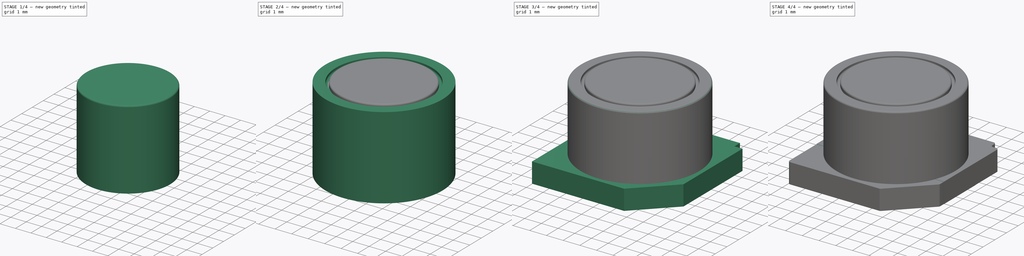
[diagram: build sequence overview — one tinted view per stage of 4, left to right]
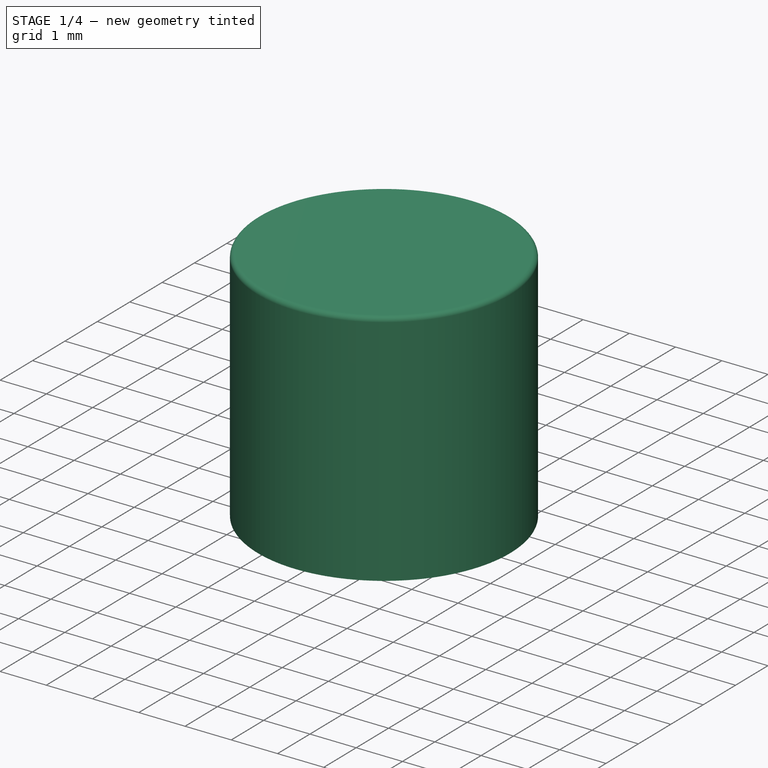
[diagram: stage 1 of 4 — iso view after this stage's code; geometry added in this stage tinted green]
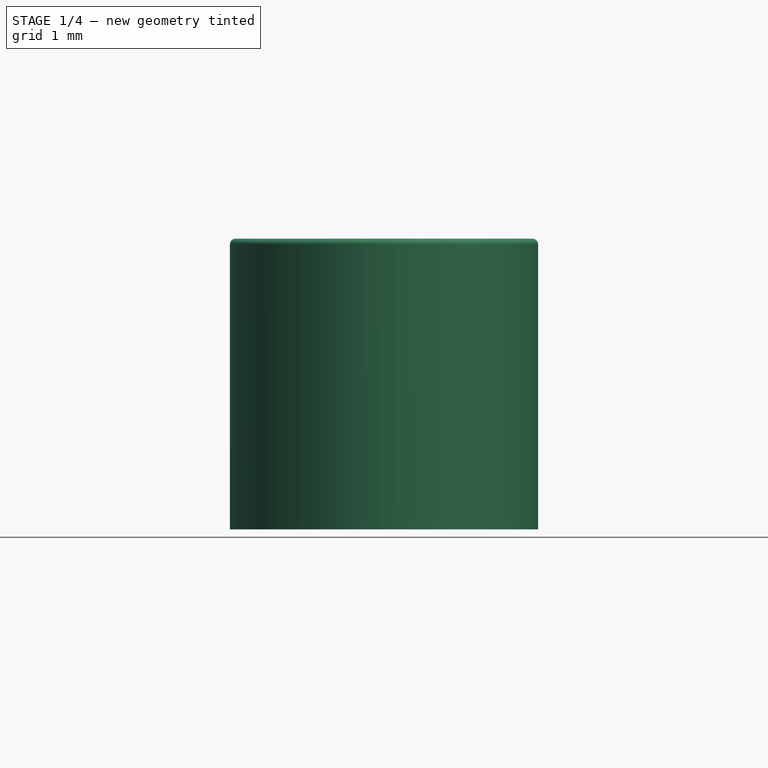
[diagram: stage 1 of 4 — front view after this stage's code; geometry added in this stage tinted green]
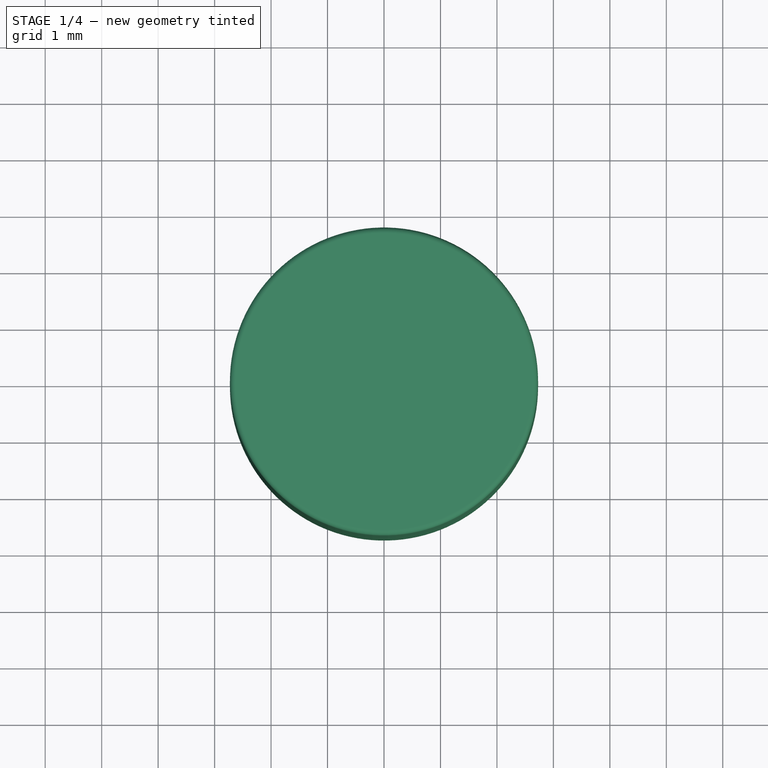
[diagram: stage 1 of 4 — top view after this stage's code; geometry added in this stage tinted green]
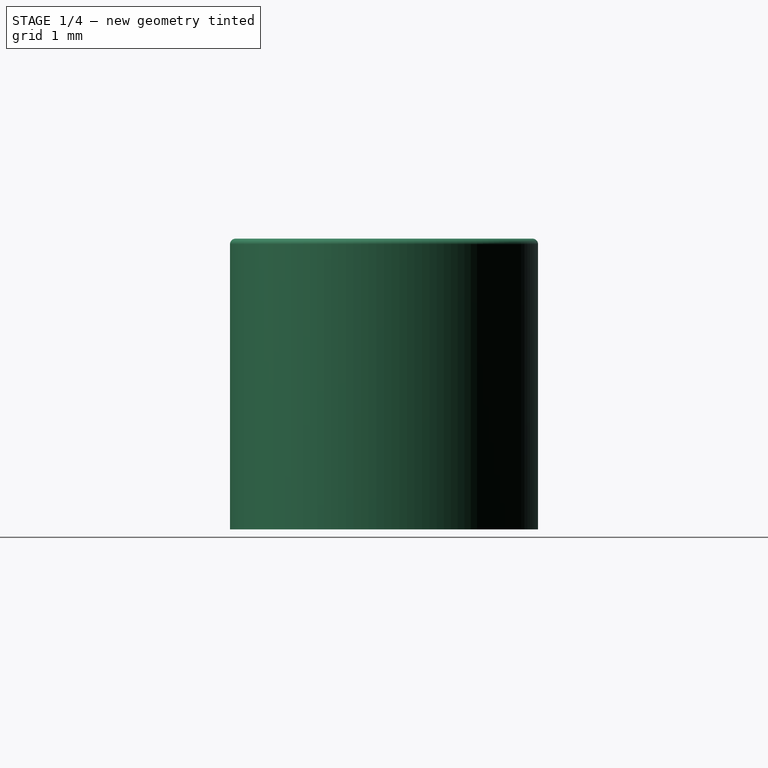
[diagram: stage 1 of 4 — right view after this stage's code; geometry added in this stage tinted green]
FCSTD DOCUMENT  (FreeCAD 0.16R6698 (Git))
Label: FERROCORE_SMD_0705
License: All rights reserved
LicenseURL: http://en.wikipedia.org/wiki/All_rights_reserved
objects: Sketcher::SketchObject×6, PartDesign::Pad×4, PartDesign::Fillet×4, Part::Feature×3, PartDesign::Pocket×2, App::DocumentObjectGroup×1
note: 25 computed .brp shape members not serialized (recipe doc carries the construction recipe); baked Part::Feature solids carry a one-line shape summary decoded from their .brp

FEATURE [Sketcher::SketchObject] Sketch005
  sketch-geometry (1):
    g0: Circle CenterX=0 CenterY=0 CenterZ=0 NormalX=0 NormalY=0 NormalZ=1 Radius=2.72869
  constraints (1):
    c: Coincident(g0,g-1)
FEATURE [PartDesign::Pad] Pad003
  Length = 5.15
  Length2 = 100
  Sketch = -> Sketch005
  Type = 0
FEATURE [PartDesign::Fillet] Fillet003
  Base = -> Pad003 [Edge3]
  Radius = 0.1
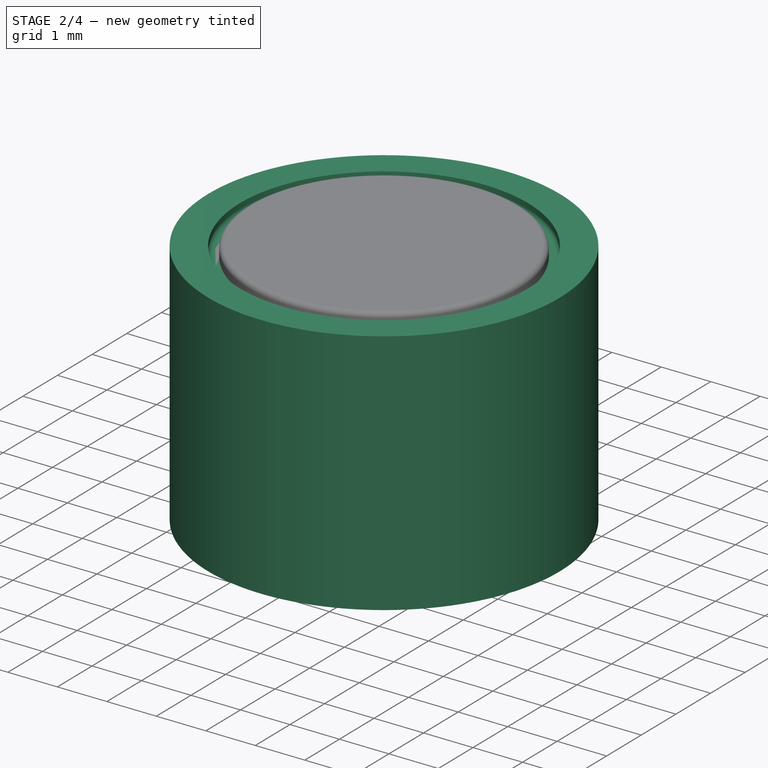
[diagram: stage 2 of 4 — iso view after this stage's code; geometry added in this stage tinted green]
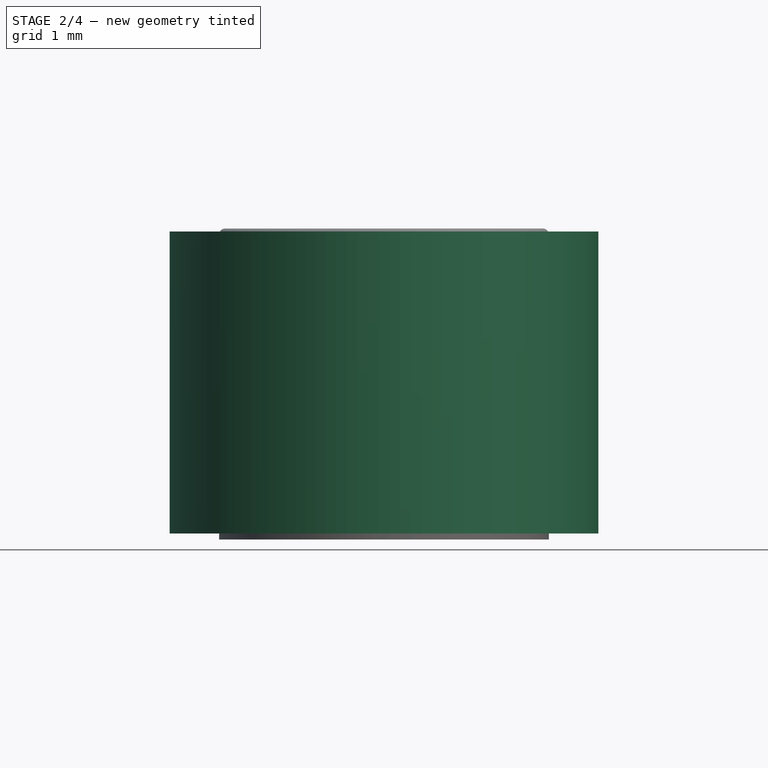
[diagram: stage 2 of 4 — front view after this stage's code; geometry added in this stage tinted green]
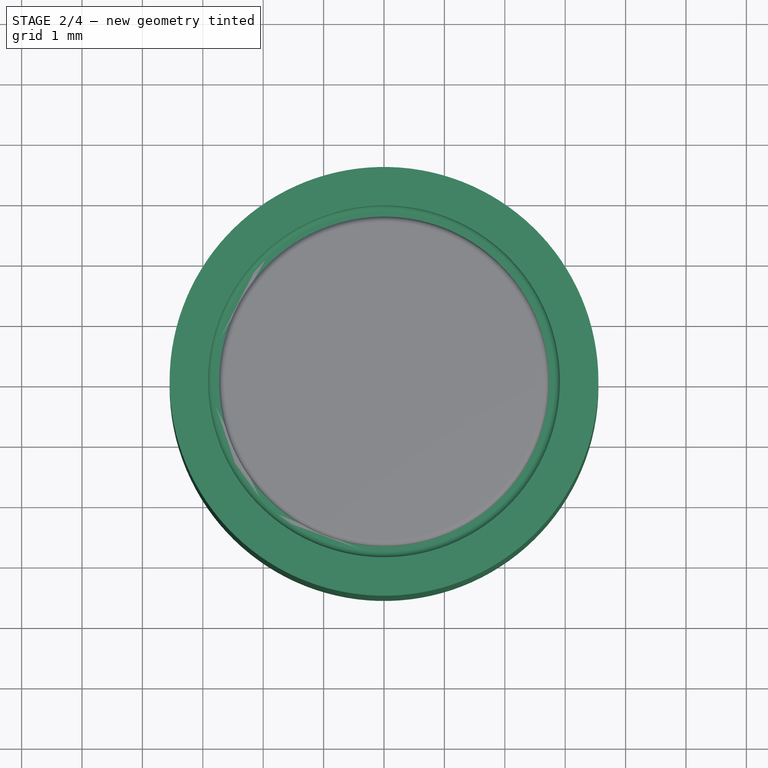
[diagram: stage 2 of 4 — top view after this stage's code; geometry added in this stage tinted green]
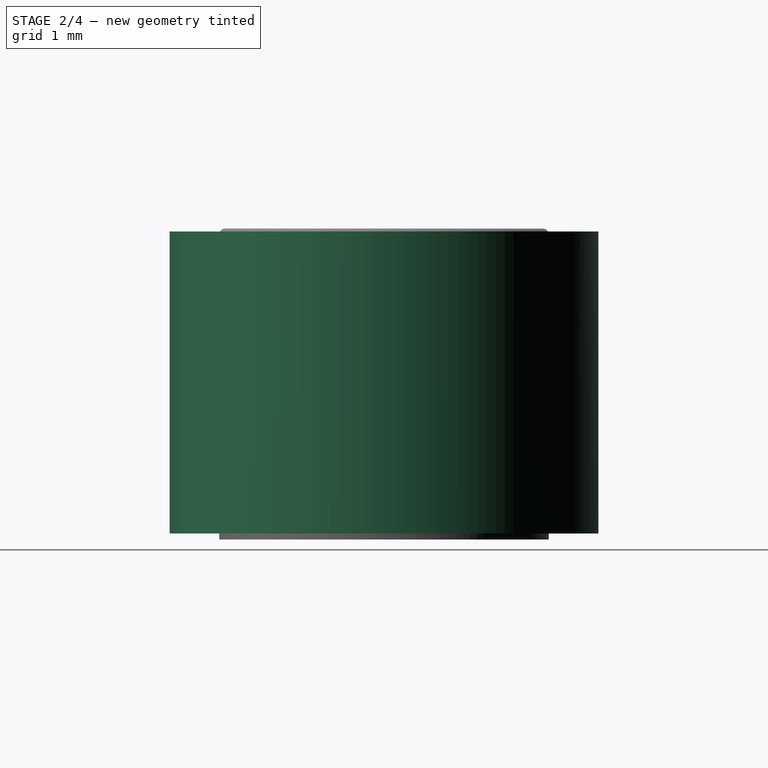
[diagram: stage 2 of 4 — right view after this stage's code; geometry added in this stage tinted green]
FEATURE [Sketcher::SketchObject] Sketch
  Placement = pos=(0,0,0.1) rot=(0,0,1;0rad)
  sketch-geometry (1):
    g0: Circle CenterX=0 CenterY=0 CenterZ=0 NormalX=0 NormalY=0 NormalZ=1 Radius=3.55
  constraints (2):
    c: Coincident(g0,g-1)
    c: Radius(g0) = 3.55
FEATURE [PartDesign::Pad] Pad
  Length = 5
  Length2 = 100
  Placement = pos=(0,0,0.1) rot=(0,0,1;0rad)
  Sketch = -> Sketch
  Type = 0
FEATURE [Sketcher::SketchObject] Sketch004
  Placement = pos=(0,0,5.1) rot=(0,0,1;0rad)
  Support = -> Pad [Face3]
  sketch-geometry (1):
    g0: Circle CenterX=0 CenterY=0 CenterZ=0 NormalX=0 NormalY=0 NormalZ=1 Radius=2.91215
  constraints (1):
    c: Coincident(g0,g-1)
FEATURE [PartDesign::Pocket] Pocket001
  Length = 0.2
  Placement = pos=(0,0,0.1) rot=(0,0,1;0rad)
  Sketch = -> Sketch004
  Type = 0
FEATURE [PartDesign::Fillet] Fillet001
  Base = -> Pocket001 [Edge6]
  Placement = pos=(0,0,0.1) rot=(0,0,1;0rad)
  Radius = 0.1
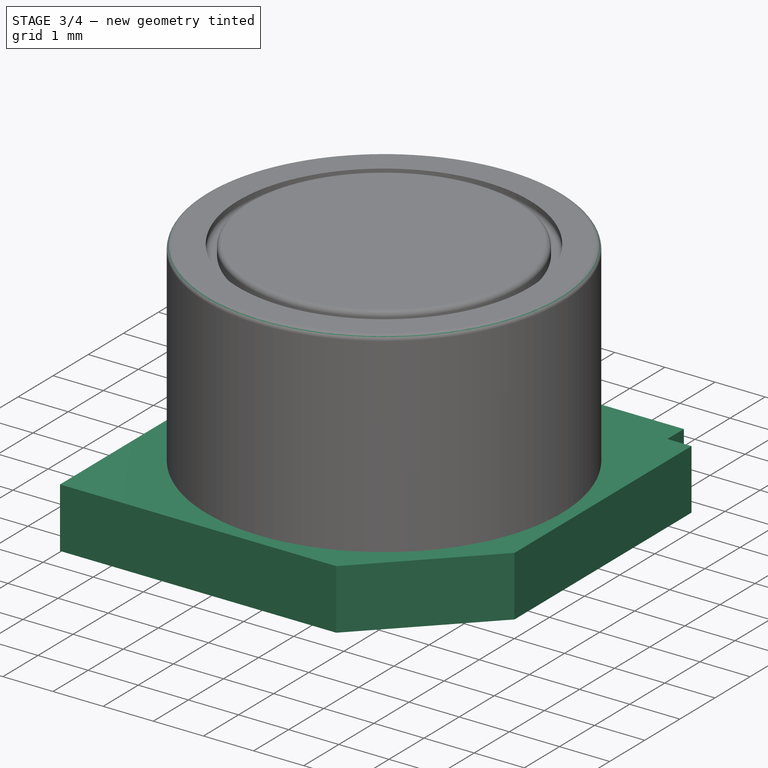
[diagram: stage 3 of 4 — iso view after this stage's code; geometry added in this stage tinted green]
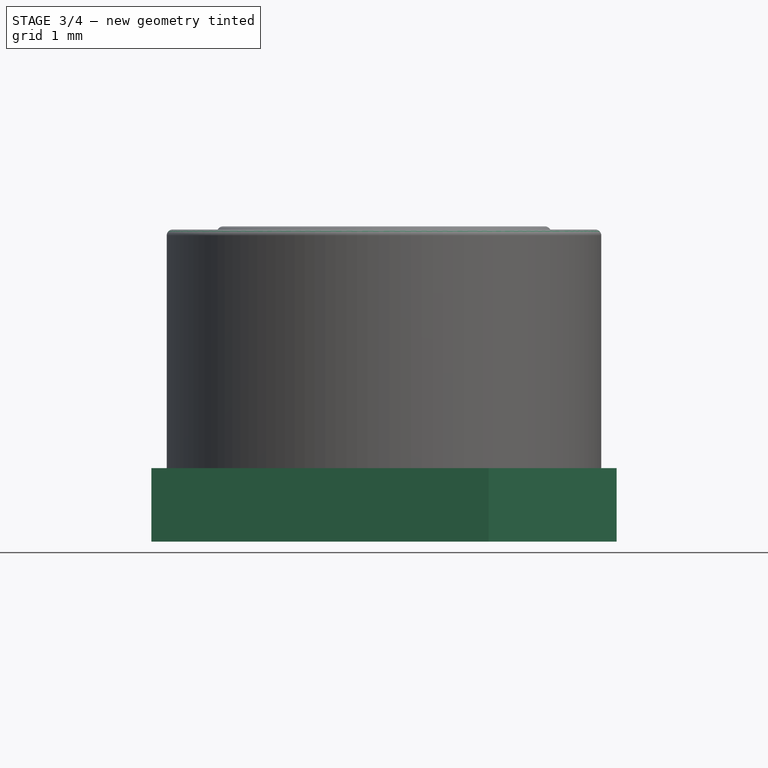
[diagram: stage 3 of 4 — front view after this stage's code; geometry added in this stage tinted green]
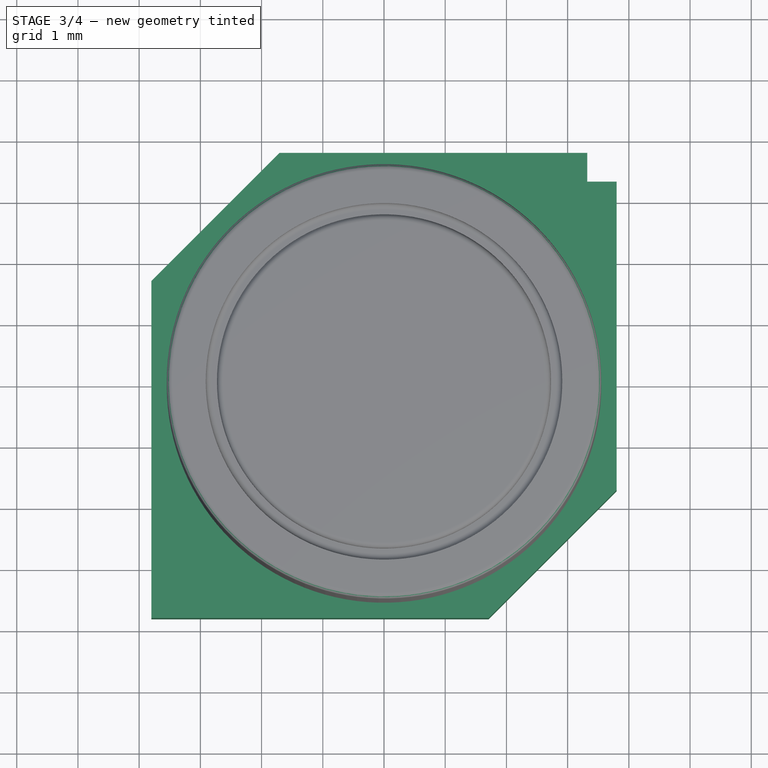
[diagram: stage 3 of 4 — top view after this stage's code; geometry added in this stage tinted green]
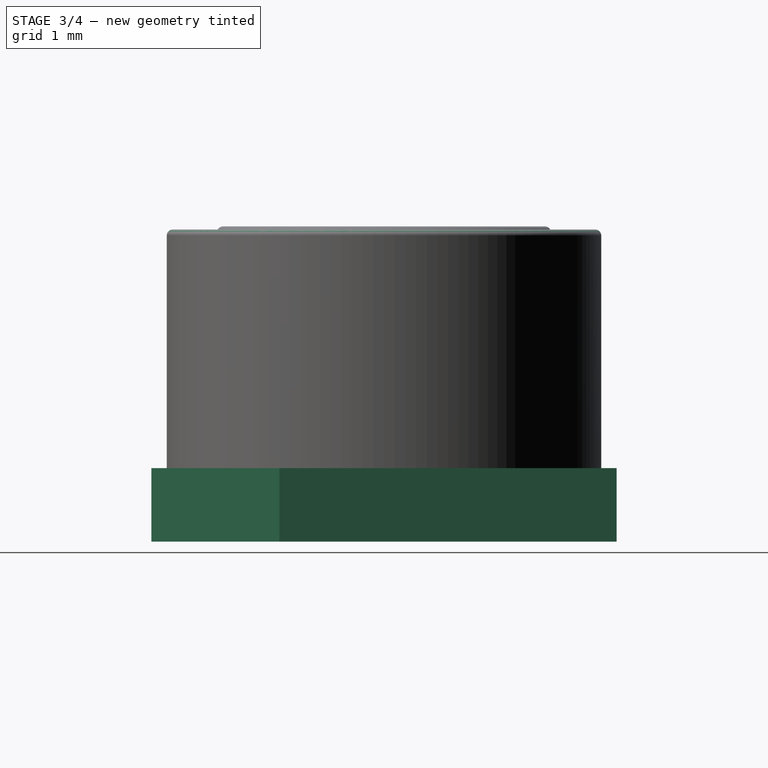
[diagram: stage 3 of 4 — right view after this stage's code; geometry added in this stage tinted green]
FEATURE [Sketcher::SketchObject] Sketch001
  sketch-geometry (4):
    g0: LineSegment StartX=-3.8 StartY=3.8 StartZ=0 EndX=3.8 EndY=3.8 EndZ=0
    g1: LineSegment StartX=3.8 StartY=3.8 StartZ=0 EndX=3.8 EndY=-3.8 EndZ=0
    g2: LineSegment StartX=3.8 StartY=-3.8 StartZ=0 EndX=-3.8 EndY=-3.8 EndZ=0
    g3: LineSegment StartX=-3.8 StartY=-3.8 StartZ=0 EndX=-3.8 EndY=3.8 EndZ=0
  constraints (11):
    c: Coincident(g0,g1)
    c: Coincident(g1,g2)
    c: Coincident(g2,g3)
    c: Coincident(g3,g0)
    c: Horizontal(g0)
    c: Horizontal(g2)
    c: Vertical(g1)
    c: Vertical(g3)
    c: Symmetric(g0,g1,g-1)
    c: DistanceX(g0,g0) = 7.6
    c: Equal(g0,g3)
FEATURE [PartDesign::Pad] Pad001
  Length = 1.2
  Length2 = 100
  Sketch = -> Sketch001
  Type = 0
FEATURE [Part::Feature] Shape  label="FrontSilk"
  shape: bbox 7.752 x 7.852 x 2e-07 mm, 14 faces, 0 solids (baked)
FEATURE [Part::Feature] Shape001  label="TopPads"
  shape: bbox 8.2 x 3 x 0.01 mm, 12 faces, 2 solids (baked)
FEATURE [Part::Feature] Shape002001  label="Pcb_solid"
  shape: bbox 13.12 x 12.56 x 1.58 mm, 6 faces (baked)
FEATURE [App::DocumentObjectGroup] FERROCORE_SMD_0703_fp
  Group = -> [Shape,Shape001,Shape002001]
FEATURE [Sketcher::SketchObject] Sketch002
  Placement = pos=(0,0,1.2) rot=(0,0,1;0rad)
  Support = -> Pad001 [Face6]
  sketch-geometry (9):
    g0: LineSegment StartX=-4.51175 StartY=4.27503 StartZ=0 EndX=-1.23385 EndY=4.27503 EndZ=0
    g1: LineSegment StartX=-1.23385 StartY=4.27503 StartZ=0 EndX=-4.51175 EndY=0.99713 EndZ=0
    g2: LineSegment StartX=-4.51175 StartY=0.99713 StartZ=0 EndX=-4.51175 EndY=4.27503 EndZ=0
    g3: LineSegment StartX=3.32065 StartY=4.59318 StartZ=0 EndX=3.32065 EndY=3.33003 EndZ=0
    g4: LineSegment StartX=3.32065 StartY=3.33003 StartZ=0 EndX=4.46774 EndY=3.33003 EndZ=0
    g5: LineSegment StartX=4.46774 StartY=3.33003 StartZ=0 EndX=3.32065 EndY=4.59318 EndZ=0
    g6: LineSegment StartX=4.51175 StartY=-0.99713 StartZ=0 EndX=1.23385 EndY=-4.27503 EndZ=0
    g7: LineSegment StartX=1.23385 StartY=-4.27503 StartZ=0 EndX=4.51175 EndY=-4.27503 EndZ=0
    g8: LineSegment StartX=4.51175 StartY=-4.27503 StartZ=0 EndX=4.51175 EndY=-0.99713 EndZ=0
  constraints (17):
    c: Coincident(g0,g1)
    c: Coincident(g1,g2)
    c: Coincident(g2,g0)
    c: Coincident(g3,g4)
    c: Coincident(g4,g5)
    c: Coincident(g5,g3)
    c: Coincident(g6,g7)
    c: Coincident(g7,g8)
    c: Coincident(g8,g6)
    c: Symmetric(g7,g0,g-1)
    c: Symmetric(g0,g6,g-1)
    c: Symmetric(g1,g6,g-1)
    c: Horizontal(g0)
    c: Vertical(g2)
    c: Equal(g0,g2)
    c: Vertical(g3)
    c: Horizontal(g4)
FEATURE [PartDesign::Pocket] Pocket
  Length = 5
  Sketch = -> Sketch002
  Type = 0
FEATURE [PartDesign::Fillet] Fillet002
  Base = -> Fillet001 [Edge8,Edge6]
  Placement = pos=(0,0,0.1) rot=(0,0,1;0rad)
  Radius = 0.1
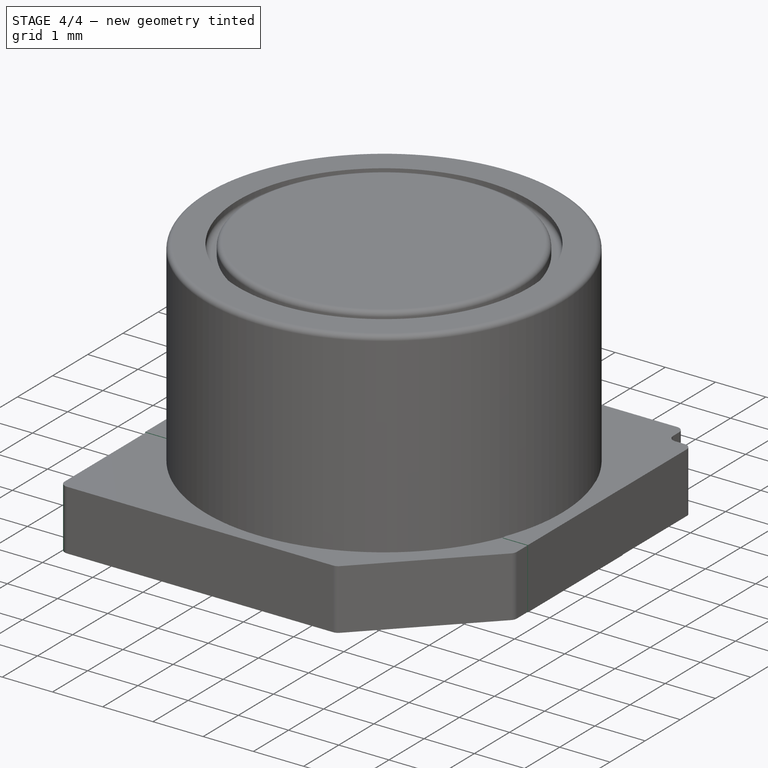
[diagram: stage 4 of 4 — iso view after this stage's code; geometry added in this stage tinted green]
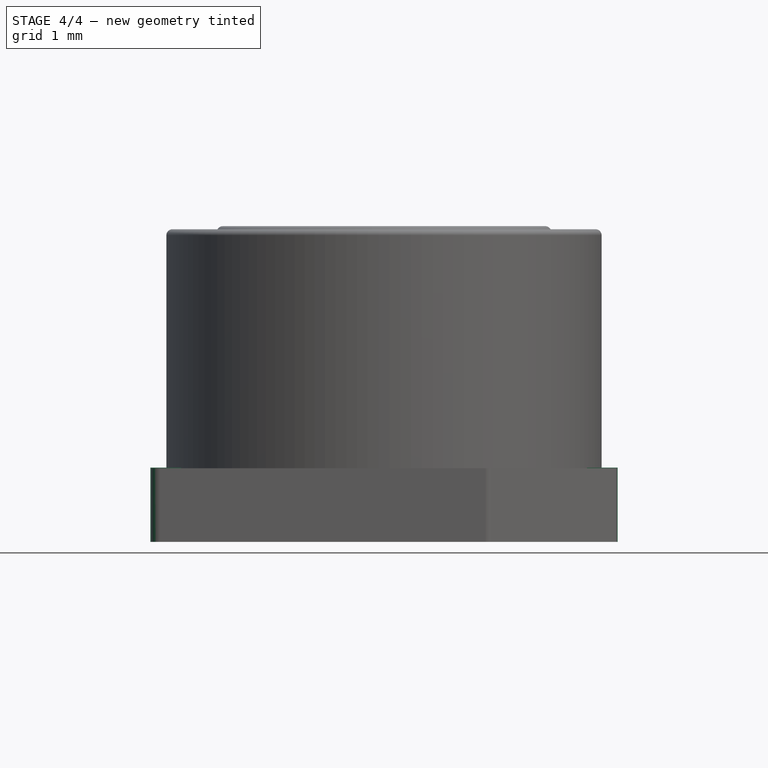
[diagram: stage 4 of 4 — front view after this stage's code; geometry added in this stage tinted green]
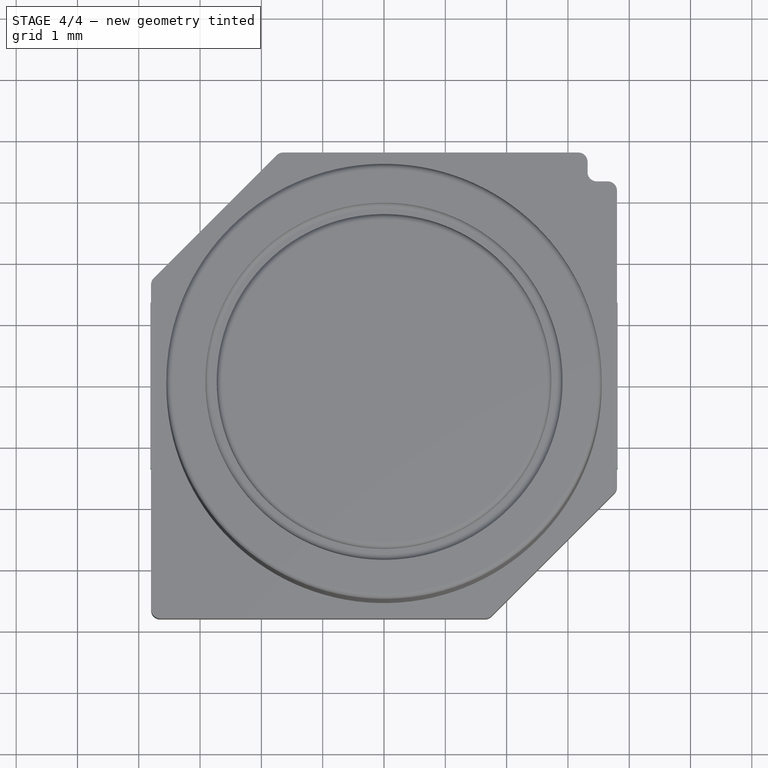
[diagram: stage 4 of 4 — top view after this stage's code; geometry added in this stage tinted green]
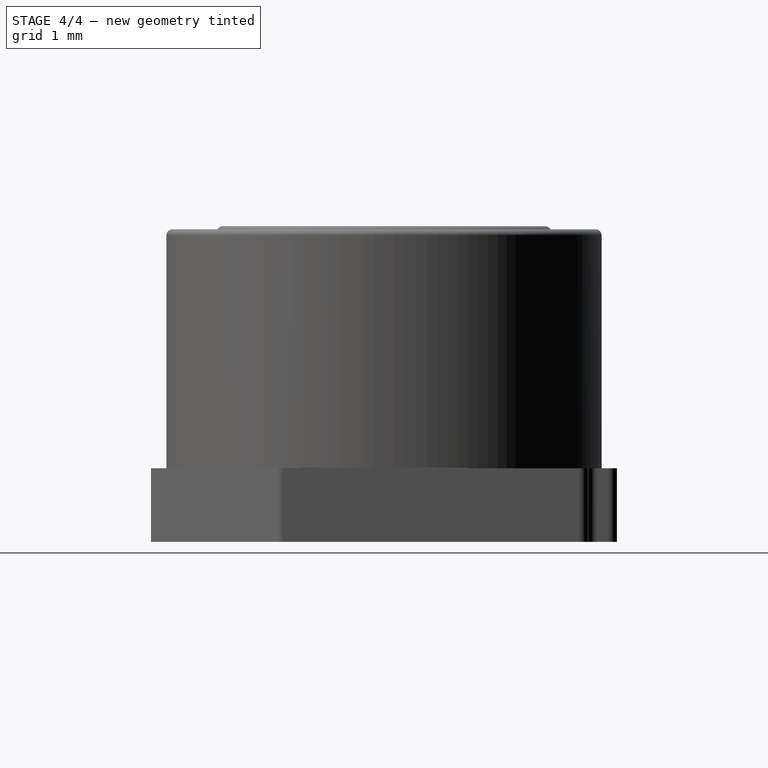
[diagram: stage 4 of 4 — right view after this stage's code; geometry added in this stage tinted green]
FEATURE [Sketcher::SketchObject] Sketch003
  sketch-geometry (8):
    g0: LineSegment StartX=-3.81 StartY=1.35 StartZ=0 EndX=-3.31 EndY=1.35 EndZ=0
    g1: LineSegment StartX=-3.31 StartY=1.35 StartZ=0 EndX=-3.31 EndY=-1.35 EndZ=0
    g2: LineSegment StartX=-3.31 StartY=-1.35 StartZ=0 EndX=-3.81 EndY=-1.35 EndZ=0
    g3: LineSegment StartX=-3.81 StartY=-1.35 StartZ=0 EndX=-3.81 EndY=1.35 EndZ=0
    g4: LineSegment StartX=3.31 StartY=1.35 StartZ=0 EndX=3.81 EndY=1.35 EndZ=0
    g5: LineSegment StartX=3.81 StartY=1.35 StartZ=0 EndX=3.81 EndY=-1.35 EndZ=0
    g6: LineSegment StartX=3.81 StartY=-1.35 StartZ=0 EndX=3.31 EndY=-1.35 EndZ=0
    g7: LineSegment StartX=3.31 StartY=-1.35 StartZ=0 EndX=3.31 EndY=1.35 EndZ=0
  constraints (23):
    c: Coincident(g0,g1)
    c: Coincident(g1,g2)
    c: Coincident(g2,g3)
    c: Coincident(g3,g0)
    c: Horizontal(g0)
    c: Horizontal(g2)
    c: Vertical(g1)
    c: Vertical(g3)
    c: Coincident(g4,g5)
    c: Coincident(g5,g6)
    c: Coincident(g6,g7)
    c: Coincident(g7,g4)
    c: Horizontal(g4)
    c: Horizontal(g6)
    c: Vertical(g5)
    c: Vertical(g7)
    c: Symmetric(g0,g4,g-2)
    c: Symmetric(g0,g2,g-1)
    c: Equal(g0,g4)
    c: DistanceX(g2,g2) = 0.5
    c: DistanceX(g0) = -3.81
    c: DistanceY(g3,g3) = 2.7
    c: Equal(g1,g7)
FEATURE [PartDesign::Pad] Pad002
  Length = 1.21
  Length2 = 100
  Sketch = -> Sketch003
  Type = 0
FEATURE [PartDesign::Fillet] Fillet
  Base = -> Pocket [Edge20,Edge24,Edge23,Edge22,Edge21,Edge13,Edge2,Edge4]
  Radius = 0.15
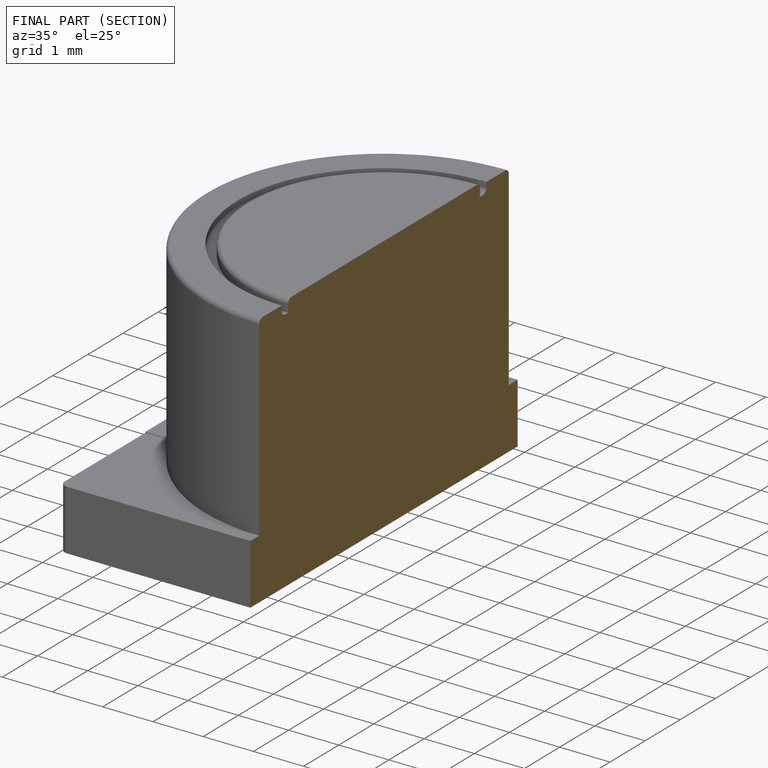
[diagram: finished part — half-section view (interior)]
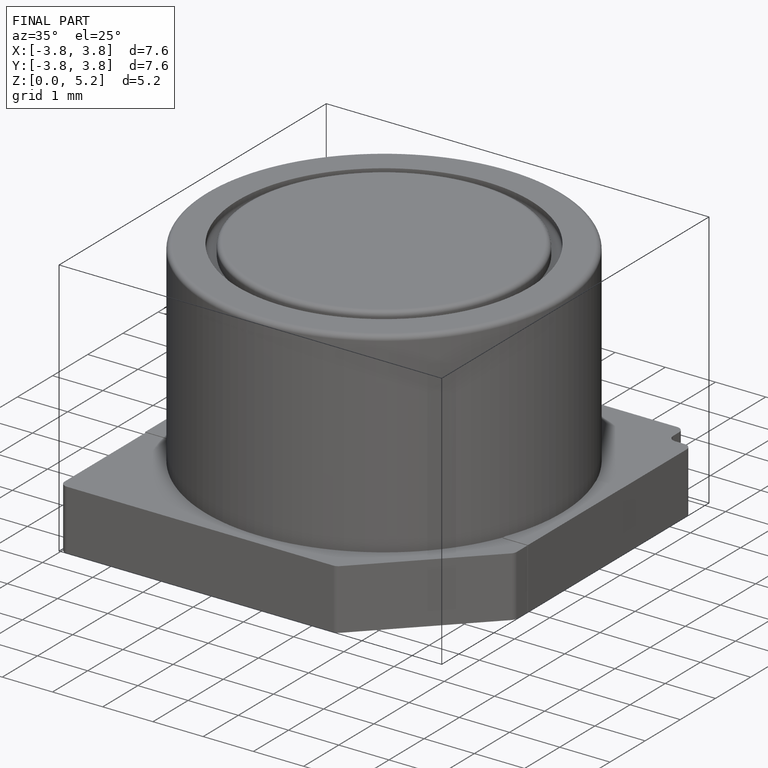
[diagram: finished part — iso view with bounding-box wireframe]
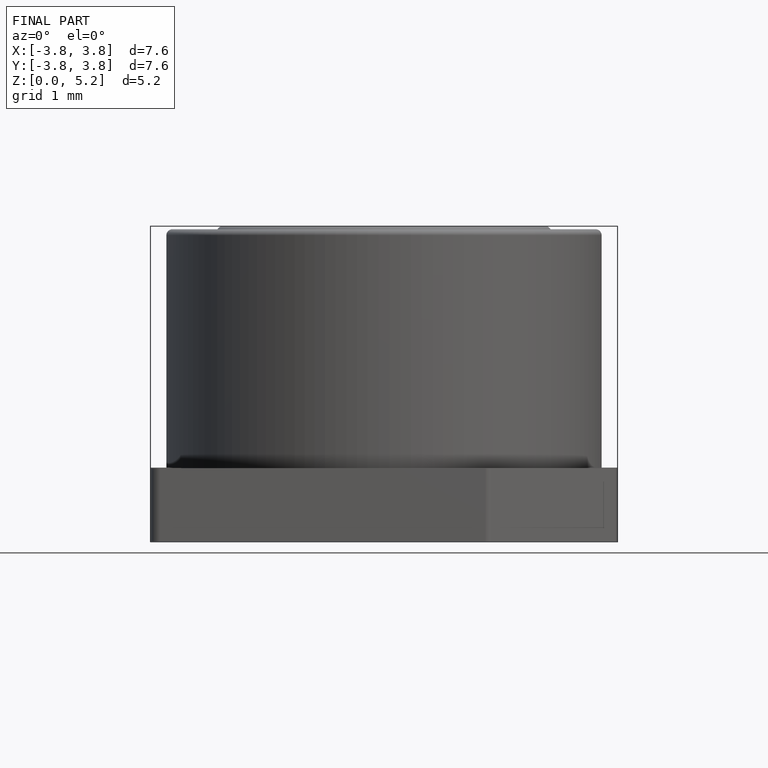
[diagram: finished part — front view with bounding-box wireframe]
